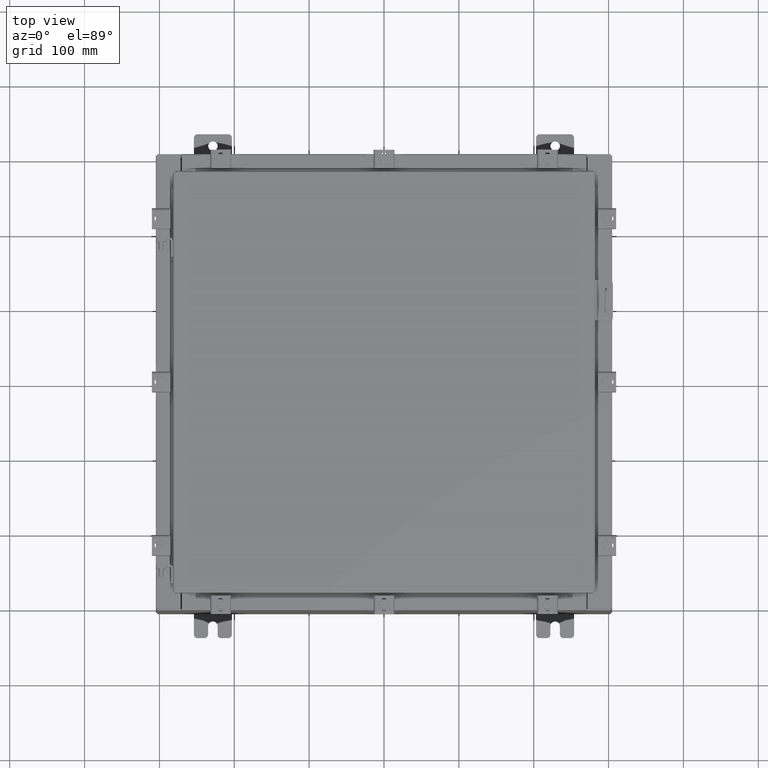
[diagram: clean part render]
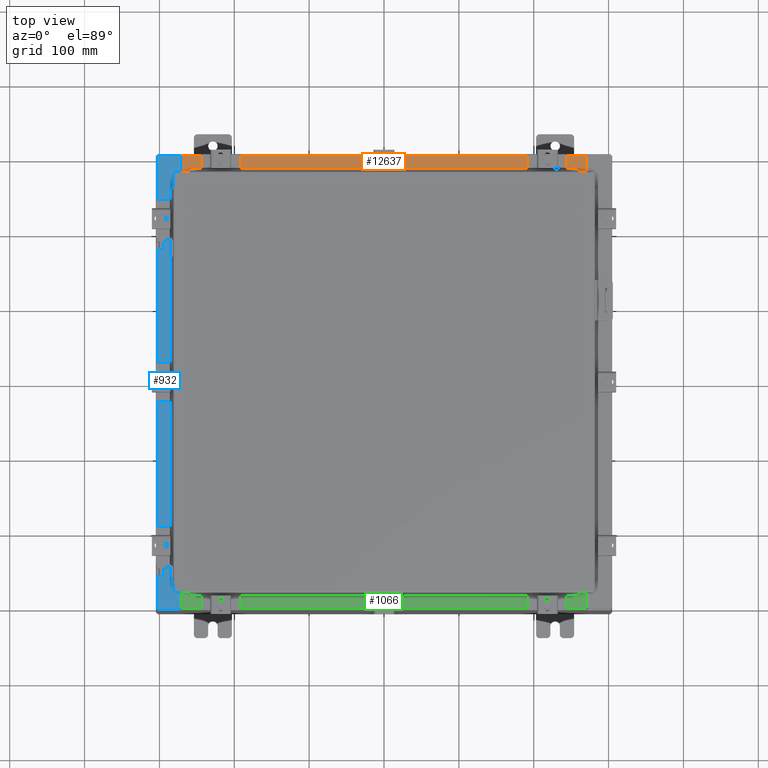
[diagram: same view with three faces highlighted in distinct colors, each labeled with its STEP entity id]
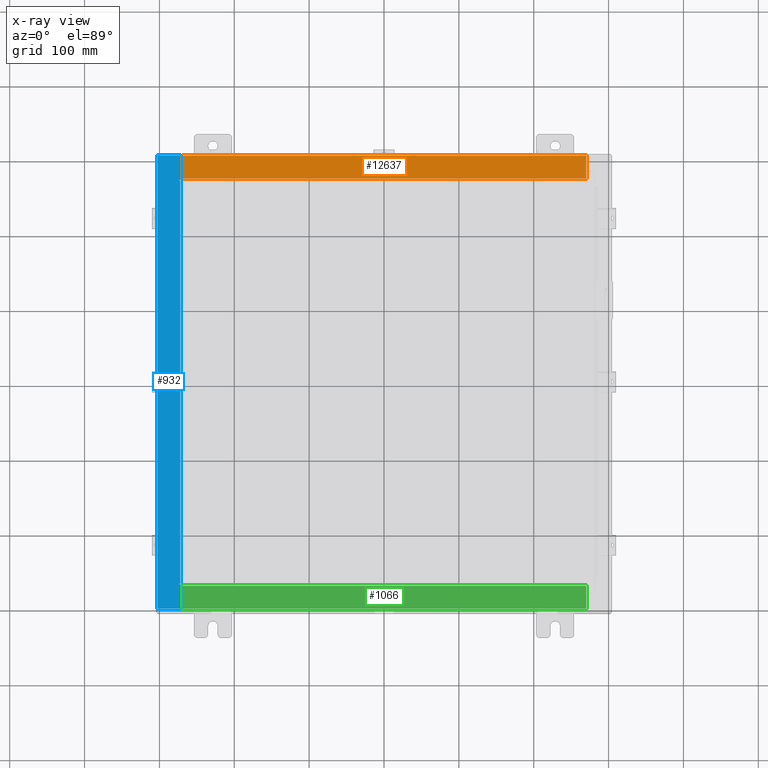
[diagram: x-ray of the same camera — body ghosted, the three highlighted faces saturated]
A machine part, top view with three faces highlighted in distinct colors.
The next image is the same camera in x-ray (body ghosted, the three faces saturated) — at least one of them is partly hidden behind the body in this view.
Their STEP definitions:

[orange] entity #12637 — the highlighted planar face has unit normal (0, 0, 1).
#1905 = LINE ( 'NONE', #6080, #14693 ) ;
#2156 = ORIENTED_EDGE ( 'NONE', *, *, #18560, .F. ) ;
#3862 = CARTESIAN_POINT ( 'NONE',  ( 10.63720000000000200, -1.300299999999999800, 6.000000000000006200 ) ) ;
#4063 = ORIENTED_EDGE ( 'NONE', *, *, #21326, .F. ) ;
#4158 = CARTESIAN_POINT ( 'NONE',  ( -3.422455537835030400E-018, 1.610972251716582100E-014, 6.000000000000001800 ) ) ;
#4961 = VERTEX_POINT ( 'NONE', #5449 ) ;
#5449 = CARTESIAN_POINT ( 'NONE',  ( 10.63720000000000200, -1.287299999999998800, 6.000000000000006200 ) ) ;
#6080 = CARTESIAN_POINT ( 'NONE',  ( -10.63720000000000200, -0.07469999999999973900, 6.000000000000001800 ) ) ;
#7526 = EDGE_CURVE ( 'NONE', #20114, #21483, #12093, .T. ) ;
#7842 = DIRECTION ( 'NONE',  ( -0.0000000000000000000, 1.000000000000000000, -2.674785894579892700E-015 ) ) ;
#8387 = CARTESIAN_POINT ( 'NONE',  ( -10.63720000000000200, -1.287299999999998100, 6.000000000000004400 ) ) ;
#9399 = DIRECTION ( 'NONE',  ( 0.0000000000000000000, -1.000000000000000000, 2.674785894579892700E-015 ) ) ;
#9589 = CARTESIAN_POINT ( 'NONE',  ( 10.63720000000000400, -1.287299999999998800, 6.000000000000003600 ) ) ;
#9943 = LINE ( 'NONE', #3862, #19229 ) ;
#11279 = EDGE_CURVE ( 'NONE', #20114, #4961, #9943, .T. ) ;
#11534 = VECTOR ( 'NONE', #19075, 39.37007874015748100 ) ;
#12093 = LINE ( 'NONE', #22570, #11534 ) ;
#12277 = VECTOR ( 'NONE', #21844, 39.37007874015748100 ) ;
#12509 = ORIENTED_EDGE ( 'NONE', *, *, #7526, .T. ) ;
#12637 = ADVANCED_FACE ( 'NONE', ( #19888 ), #16248, .T. ) ;
#14246 = VERTEX_POINT ( 'NONE', #8387 ) ;
#14693 = VECTOR ( 'NONE', #7842, 39.37007874015748100 ) ;
#16248 = PLANE ( 'NONE',  #22572 ) ;
#18294 = EDGE_LOOP ( 'NONE', ( #4063, #2156, #19779, #12509 ) ) ;
#18560 = EDGE_CURVE ( 'NONE', #4961, #14246, #22111, .T. ) ;
#18604 = CARTESIAN_POINT ( 'NONE',  ( -10.63720000000000200, -0.08770000000000026400, 6.000000000000001800 ) ) ;
#19075 = DIRECTION ( 'NONE',  ( -1.000000000000000000, 0.0000000000000000000, 0.0000000000000000000 ) ) ;
#19229 = VECTOR ( 'NONE', #21284, 39.37007874015748100 ) ;
#19779 = ORIENTED_EDGE ( 'NONE', *, *, #11279, .F. ) ;
#19864 = DIRECTION ( 'NONE',  ( 0.0000000000000000000, 2.674785894579892700E-015, 1.000000000000000000 ) ) ;
#19888 = FACE_OUTER_BOUND ( 'NONE', #18294, .T. ) ;
#20114 = VERTEX_POINT ( 'NONE', #20745 ) ;
#20745 = CARTESIAN_POINT ( 'NONE',  ( 10.63720000000000400, -0.08770000000000002800, 6.000000000000001800 ) ) ;
#21284 = DIRECTION ( 'NONE',  ( -0.0000000000000000000, -1.000000000000000000, 3.566381192773190000E-015 ) ) ;
#21326 = EDGE_CURVE ( 'NONE', #14246, #21483, #1905, .T. ) ;
#21483 = VERTEX_POINT ( 'NONE', #18604 ) ;
#21844 = DIRECTION ( 'NONE',  ( -1.000000000000000000, 0.0000000000000000000, 0.0000000000000000000 ) ) ;
#22111 = LINE ( 'NONE', #9589, #12277 ) ;
#22570 = CARTESIAN_POINT ( 'NONE',  ( -3.422455537835030400E-018, -0.08770000000000026400, 6.000000000000001800 ) ) ;
#22572 = AXIS2_PLACEMENT_3D ( 'NONE', #4158, #19864, #9399 ) ;

[blue] entity #932 — the highlighted planar face has unit normal (0, 0, -1).
#222 = DIRECTION ( 'NONE',  ( 1.000000000000000000, -0.0000000000000000000, 7.132762385546384700E-015 ) ) ;
#383 = LINE ( 'NONE', #11721, #13174 ) ;
#673 = DIRECTION ( 'NONE',  ( -1.000000000000000000, 0.0000000000000000000, -7.132762385546384700E-015 ) ) ;
#932 = ADVANCED_FACE ( 'NONE', ( #17224 ), #22281, .F. ) ;
#1170 = ORIENTED_EDGE ( 'NONE', *, *, #20653, .F. ) ;
#1614 = AXIS2_PLACEMENT_3D ( 'NONE', #16721, #6339, #18492 ) ;
#1650 = CARTESIAN_POINT ( 'NONE',  ( -10.75005000000004600, -10.63109999999998800, 11.92530000000000900 ) ) ;
#1675 = CARTESIAN_POINT ( 'NONE',  ( -10.75005000000004600, -10.59374999999998900, 11.92530000000000900 ) ) ;
#2001 = CARTESIAN_POINT ( 'NONE',  ( -10.75005000000004600, -10.61242499999998900, 11.92530000000000900 ) ) ;
#2140 = CARTESIAN_POINT ( 'NONE',  ( -10.75005000000004600, -10.63109999999998800, 11.92530000000000900 ) ) ;
#2198 = VERTEX_POINT ( 'NONE', #7222 ) ;
#2530 = ORIENTED_EDGE ( 'NONE', *, *, #22543, .F. ) ;
#2986 = VECTOR ( 'NONE', #222, 39.37007874015748100 ) ;
#3159 = CARTESIAN_POINT ( 'NONE',  ( -10.69970000000004600, 10.63109999999999600, 11.92530000000000900 ) ) ;
#3200 = CARTESIAN_POINT ( 'NONE',  ( -11.91230000000004500, -11.92530000000000000, 11.92530000000000000 ) ) ;
#3440 = CARTESIAN_POINT ( 'NONE',  ( -10.69970000000004600, -10.63109999999999100, 11.92530000000000900 ) ) ;
#3605 = VERTEX_POINT ( 'NONE', #14917 ) ;
#3767 = CIRCLE ( 'NONE', #18854, 0.01867499999999949400 ) ;
#3787 = DIRECTION ( 'NONE',  ( 1.000000000000000000, 0.0000000000000000000, 0.0000000000000000000 ) ) ;
#3919 = VECTOR ( 'NONE', #13811, 39.37007874015748100 ) ;
#4428 = DIRECTION ( 'NONE',  ( 7.132762385546384700E-015, 0.0000000000000000000, -1.000000000000000000 ) ) ;
#4454 = DIRECTION ( 'NONE',  ( -0.0000000000000000000, 1.000000000000000000, -0.0000000000000000000 ) ) ;
#4873 = VERTEX_POINT ( 'NONE', #3440 ) ;
#5193 = EDGE_CURVE ( 'NONE', #9572, #3605, #15702, .T. ) ;
#5354 = VECTOR ( 'NONE', #14568, 39.37007874015748100 ) ;
#5437 = CIRCLE ( 'NONE', #1614, 0.01867499999999949400 ) ;
#5733 = AXIS2_PLACEMENT_3D ( 'NONE', #7869, #4428, #673 ) ;
#6339 = DIRECTION ( 'NONE',  ( -7.132762385546384700E-015, -0.0000000000000000000, 1.000000000000000000 ) ) ;
#6793 = CARTESIAN_POINT ( 'NONE',  ( -10.71270000000004800, 10.59374999999999800, 11.92530000000000900 ) ) ;
#7090 = EDGE_CURVE ( 'NONE', #20537, #4873, #9942, .T. ) ;
#7104 = CARTESIAN_POINT ( 'NONE',  ( -8.532114493236847900E-014, 11.92529999999999800, 11.92530000000008500 ) ) ;
#7222 = CARTESIAN_POINT ( 'NONE',  ( -10.75005000000004600, 10.59374999999999800, 11.92530000000000900 ) ) ;
#7869 = CARTESIAN_POINT ( 'NONE',  ( -8.532114493236847900E-014, 0.0000000000000000000, 11.92530000000008500 ) ) ;
#8257 = DIRECTION ( 'NONE',  ( -0.0000000000000000000, -1.000000000000000000, -0.0000000000000000000 ) ) ;
#8668 = CARTESIAN_POINT ( 'NONE',  ( -10.75005000000004600, 10.63109999999999600, 11.92530000000000900 ) ) ;
#8895 = VECTOR ( 'NONE', #17089, 39.37007874015748100 ) ;
#8970 = EDGE_CURVE ( 'NONE', #9667, #20423, #3767, .T. ) ;
#9120 = EDGE_LOOP ( 'NONE', ( #14629, #9364, #21667, #15154, #9156, #10864, #19388, #11544, #1170, #10999, #19515, #2530 ) ) ;
#9156 = ORIENTED_EDGE ( 'NONE', *, *, #20351, .T. ) ;
#9364 = ORIENTED_EDGE ( 'NONE', *, *, #18421, .T. ) ;
#9572 = VERTEX_POINT ( 'NONE', #18869 ) ;
#9667 = VERTEX_POINT ( 'NONE', #1675 ) ;
#9942 = LINE ( 'NONE', #17989, #5354 ) ;
#10399 = VECTOR ( 'NONE', #18027, 39.37007874015748100 ) ;
#10728 = VERTEX_POINT ( 'NONE', #11430 ) ;
#10854 = EDGE_CURVE ( 'NONE', #14303, #10728, #383, .T. ) ;
#10864 = ORIENTED_EDGE ( 'NONE', *, *, #7090, .T. ) ;
#10999 = ORIENTED_EDGE ( 'NONE', *, *, #10854, .F. ) ;
#11402 = VECTOR ( 'NONE', #13137, 39.37007874015748100 ) ;
#11430 = CARTESIAN_POINT ( 'NONE',  ( -10.71270000000004800, -10.59374999999998900, 11.92530000000000900 ) ) ;
#11478 = LINE ( 'NONE', #12779, #10399 ) ;
#11544 = ORIENTED_EDGE ( 'NONE', *, *, #8970, .F. ) ;
#11721 = CARTESIAN_POINT ( 'NONE',  ( -10.71270000000004800, 10.59374999999999300, 11.92530000000000900 ) ) ;
#12236 = LINE ( 'NONE', #21088, #2986 ) ;
#12286 = DIRECTION ( 'NONE',  ( -1.000000000000000000, 0.0000000000000000000, -7.132762385546384700E-015 ) ) ;
#12779 = CARTESIAN_POINT ( 'NONE',  ( -10.69970000000004600, 0.0000000000000000000, 11.92530000000000900 ) ) ;
#13137 = DIRECTION ( 'NONE',  ( -1.000000000000000000, 0.0000000000000000000, 0.0000000000000000000 ) ) ;
#13174 = VECTOR ( 'NONE', #8257, 39.37007874015748100 ) ;
#13564 = DIRECTION ( 'NONE',  ( 1.000000000000000000, 0.0000000000000000000, 0.0000000000000000000 ) ) ;
#13592 = VERTEX_POINT ( 'NONE', #15762 ) ;
#13811 = DIRECTION ( 'NONE',  ( 1.000000000000000000, 0.0000000000000000000, 0.0000000000000000000 ) ) ;
#14181 = DIRECTION ( 'NONE',  ( -7.132762385546384700E-015, -0.0000000000000000000, 1.000000000000000000 ) ) ;
#14303 = VERTEX_POINT ( 'NONE', #6793 ) ;
#14543 = LINE ( 'NONE', #21791, #18638 ) ;
#14568 = DIRECTION ( 'NONE',  ( 0.0000000000000000000, 1.000000000000000000, 0.0000000000000000000 ) ) ;
#14608 = CARTESIAN_POINT ( 'NONE',  ( -10.69970000000004600, -11.92530000000000000, 11.92530000000000900 ) ) ;
#14629 = ORIENTED_EDGE ( 'NONE', *, *, #14918, .F. ) ;
#14906 = CARTESIAN_POINT ( 'NONE',  ( -10.71270000000004800, -10.59374999999998900, 11.92530000000000900 ) ) ;
#14917 = CARTESIAN_POINT ( 'NONE',  ( -11.91230000000004500, 11.92529999999999800, 11.92530000000000000 ) ) ;
#14918 = EDGE_CURVE ( 'NONE', #13592, #17679, #18129, .T. ) ;
#15154 = ORIENTED_EDGE ( 'NONE', *, *, #16824, .F. ) ;
#15173 = VECTOR ( 'NONE', #12286, 39.37007874015748100 ) ;
#15521 = EDGE_CURVE ( 'NONE', #2198, #14303, #18105, .T. ) ;
#15702 = LINE ( 'NONE', #7104, #15173 ) ;
#15762 = CARTESIAN_POINT ( 'NONE',  ( -10.69970000000004600, 10.63109999999999600, 11.92530000000000900 ) ) ;
#16357 = EDGE_CURVE ( 'NONE', #20423, #4873, #17259, .T. ) ;
#16721 = CARTESIAN_POINT ( 'NONE',  ( -10.75005000000004600, 10.61242499999999800, 11.92530000000000900 ) ) ;
#16824 = EDGE_CURVE ( 'NONE', #20891, #3605, #14543, .T. ) ;
#17069 = CARTESIAN_POINT ( 'NONE',  ( -10.75005000000004600, 10.59374999999999800, 11.92530000000000900 ) ) ;
#17089 = DIRECTION ( 'NONE',  ( -1.000000000000000000, 0.0000000000000000000, 0.0000000000000000000 ) ) ;
#17224 = FACE_OUTER_BOUND ( 'NONE', #9120, .T. ) ;
#17259 = LINE ( 'NONE', #1650, #3919 ) ;
#17679 = VERTEX_POINT ( 'NONE', #8668 ) ;
#17989 = CARTESIAN_POINT ( 'NONE',  ( -10.69970000000004600, 0.0000000000000000000, 11.92530000000000900 ) ) ;
#18027 = DIRECTION ( 'NONE',  ( 0.0000000000000000000, 1.000000000000000000, 0.0000000000000000000 ) ) ;
#18105 = LINE ( 'NONE', #17069, #21646 ) ;
#18129 = LINE ( 'NONE', #3159, #8895 ) ;
#18421 = EDGE_CURVE ( 'NONE', #13592, #9572, #11478, .T. ) ;
#18492 = DIRECTION ( 'NONE',  ( 1.000000000000000000, 0.0000000000000000000, 0.0000000000000000000 ) ) ;
#18638 = VECTOR ( 'NONE', #4454, 39.37007874015748100 ) ;
#18854 = AXIS2_PLACEMENT_3D ( 'NONE', #2001, #14181, #3787 ) ;
#18869 = CARTESIAN_POINT ( 'NONE',  ( -10.69970000000004600, 11.92529999999999800, 11.92530000000000900 ) ) ;
#19388 = ORIENTED_EDGE ( 'NONE', *, *, #16357, .F. ) ;
#19515 = ORIENTED_EDGE ( 'NONE', *, *, #15521, .F. ) ;
#20351 = EDGE_CURVE ( 'NONE', #20891, #20537, #12236, .T. ) ;
#20423 = VERTEX_POINT ( 'NONE', #2140 ) ;
#20537 = VERTEX_POINT ( 'NONE', #14608 ) ;
#20653 = EDGE_CURVE ( 'NONE', #10728, #9667, #20698, .T. ) ;
#20698 = LINE ( 'NONE', #14906, #11402 ) ;
#20891 = VERTEX_POINT ( 'NONE', #3200 ) ;
#21088 = CARTESIAN_POINT ( 'NONE',  ( -8.532114493236847900E-014, -11.92530000000000000, 11.92530000000008500 ) ) ;
#21646 = VECTOR ( 'NONE', #13564, 39.37007874015748100 ) ;
#21667 = ORIENTED_EDGE ( 'NONE', *, *, #5193, .T. ) ;
#21791 = CARTESIAN_POINT ( 'NONE',  ( -11.91230000000004500, 11.92529999999999800, 11.92530000000000000 ) ) ;
#22281 = PLANE ( 'NONE',  #5733 ) ;
#22543 = EDGE_CURVE ( 'NONE', #17679, #2198, #5437, .T. ) ;

[green] entity #1066 — the highlighted planar face has unit normal (-0, -0, 1).
#394 = VERTEX_POINT ( 'NONE', #17996 ) ;
#1066 = ADVANCED_FACE ( 'NONE', ( #16117 ), #2207, .T. ) ;
#1091 = DIRECTION ( 'NONE',  ( -1.000000000000000000, 0.0000000000000000000, 0.0000000000000000000 ) ) ;
#1256 = CARTESIAN_POINT ( 'NONE',  ( -10.63720000000000200, -0.08770000000000026400, 6.000000000000001800 ) ) ;
#1611 = ORIENTED_EDGE ( 'NONE', *, *, #15365, .T. ) ;
#2207 = PLANE ( 'NONE',  #12687 ) ;
#2766 = EDGE_CURVE ( 'NONE', #8736, #6165, #18376, .T. ) ;
#2941 = VECTOR ( 'NONE', #15329, 39.37007874015748100 ) ;
#3082 = CARTESIAN_POINT ( 'NONE',  ( -10.63720000000000200, -1.287299999999998100, 6.000000000000004400 ) ) ;
#3215 = VECTOR ( 'NONE', #11327, 39.37007874015748100 ) ;
#4731 = ORIENTED_EDGE ( 'NONE', *, *, #2766, .F. ) ;
#5275 = ORIENTED_EDGE ( 'NONE', *, *, #13900, .F. ) ;
#6082 = DIRECTION ( 'NONE',  ( 0.0000000000000000000, -1.000000000000000000, 2.674785894579892700E-015 ) ) ;
#6165 = VERTEX_POINT ( 'NONE', #1256 ) ;
#6479 = CARTESIAN_POINT ( 'NONE',  ( 10.63720000000000200, -1.287299999999998800, 6.000000000000006200 ) ) ;
#7594 = LINE ( 'NONE', #15270, #2941 ) ;
#7638 = CARTESIAN_POINT ( 'NONE',  ( -10.63720000000000200, -0.07469999999999973900, 6.000000000000001800 ) ) ;
#8736 = VERTEX_POINT ( 'NONE', #3082 ) ;
#8739 = EDGE_CURVE ( 'NONE', #16230, #8736, #7594, .T. ) ;
#10497 = VECTOR ( 'NONE', #1091, 39.37007874015748100 ) ;
#10830 = CARTESIAN_POINT ( 'NONE',  ( -3.422455537835030400E-018, 1.610972251716582100E-014, 6.000000000000001800 ) ) ;
#11327 = DIRECTION ( 'NONE',  ( -0.0000000000000000000, -1.000000000000000000, 3.566381192773190000E-015 ) ) ;
#12631 = VECTOR ( 'NONE', #19811, 39.37007874015748100 ) ;
#12687 = AXIS2_PLACEMENT_3D ( 'NONE', #10830, #20687, #6082 ) ;
#13900 = EDGE_CURVE ( 'NONE', #394, #16230, #17097, .T. ) ;
#14812 = ORIENTED_EDGE ( 'NONE', *, *, #8739, .F. ) ;
#15124 = LINE ( 'NONE', #21939, #10497 ) ;
#15270 = CARTESIAN_POINT ( 'NONE',  ( 10.63720000000000400, -1.287299999999998800, 6.000000000000003600 ) ) ;
#15329 = DIRECTION ( 'NONE',  ( -1.000000000000000000, 0.0000000000000000000, 0.0000000000000000000 ) ) ;
#15365 = EDGE_CURVE ( 'NONE', #394, #6165, #15124, .T. ) ;
#16117 = FACE_OUTER_BOUND ( 'NONE', #17167, .T. ) ;
#16230 = VERTEX_POINT ( 'NONE', #6479 ) ;
#17097 = LINE ( 'NONE', #20034, #3215 ) ;
#17167 = EDGE_LOOP ( 'NONE', ( #4731, #14812, #5275, #1611 ) ) ;
#17996 = CARTESIAN_POINT ( 'NONE',  ( 10.63720000000000400, -0.08770000000000002800, 6.000000000000001800 ) ) ;
#18376 = LINE ( 'NONE', #7638, #12631 ) ;
#19811 = DIRECTION ( 'NONE',  ( -0.0000000000000000000, 1.000000000000000000, -2.674785894579892700E-015 ) ) ;
#20034 = CARTESIAN_POINT ( 'NONE',  ( 10.63720000000000200, -1.300299999999999800, 6.000000000000006200 ) ) ;
#20687 = DIRECTION ( 'NONE',  ( 0.0000000000000000000, 2.674785894579892700E-015, 1.000000000000000000 ) ) ;
#21939 = CARTESIAN_POINT ( 'NONE',  ( -3.422455537835030400E-018, -0.08770000000000026400, 6.000000000000001800 ) ) ;